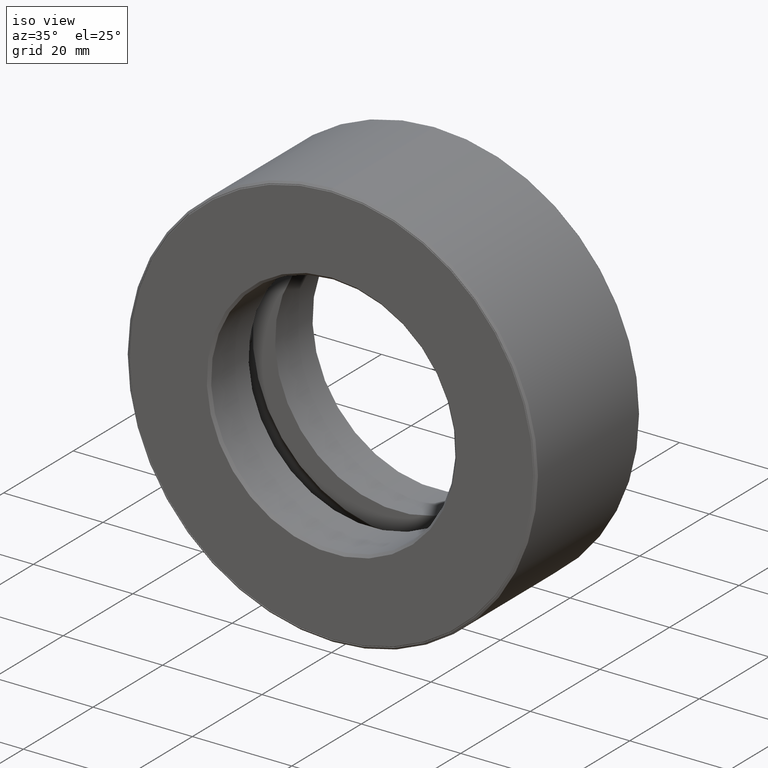
[diagram: clean part render]
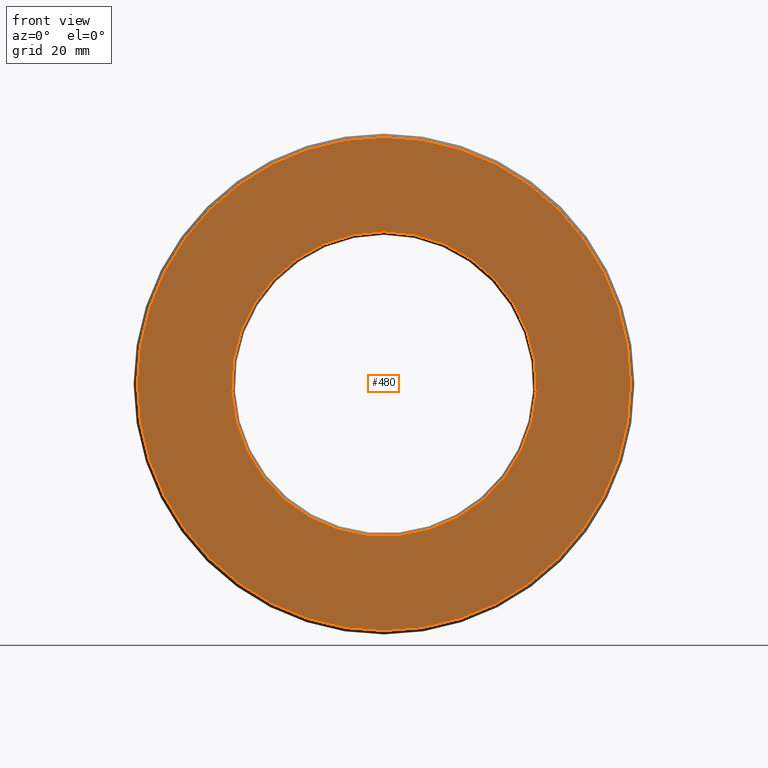
[diagram: tour spotlight — one face highlighted and labeled with its STEP entity id]
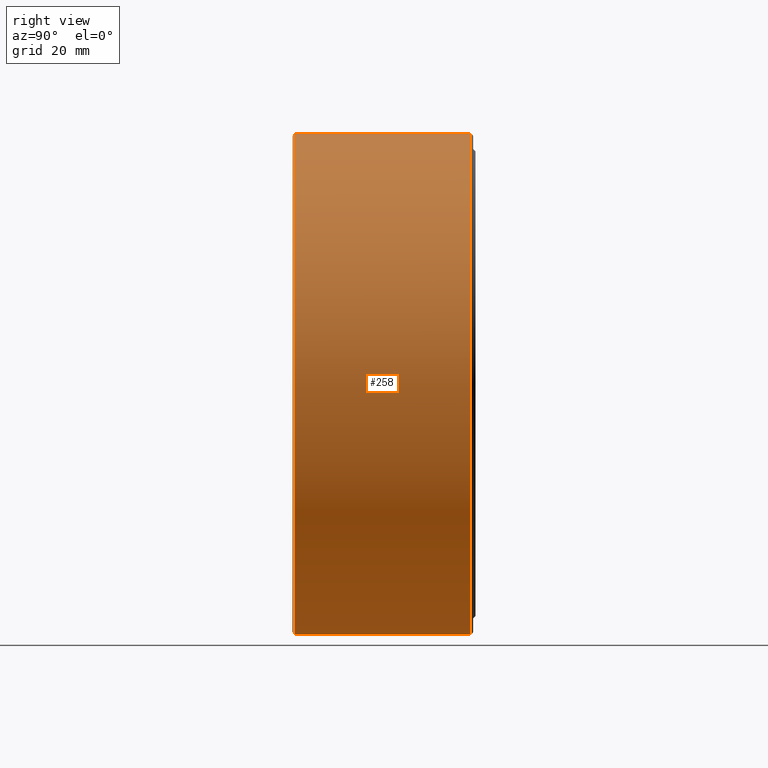
[diagram: tour spotlight — one face highlighted and labeled with its STEP entity id]
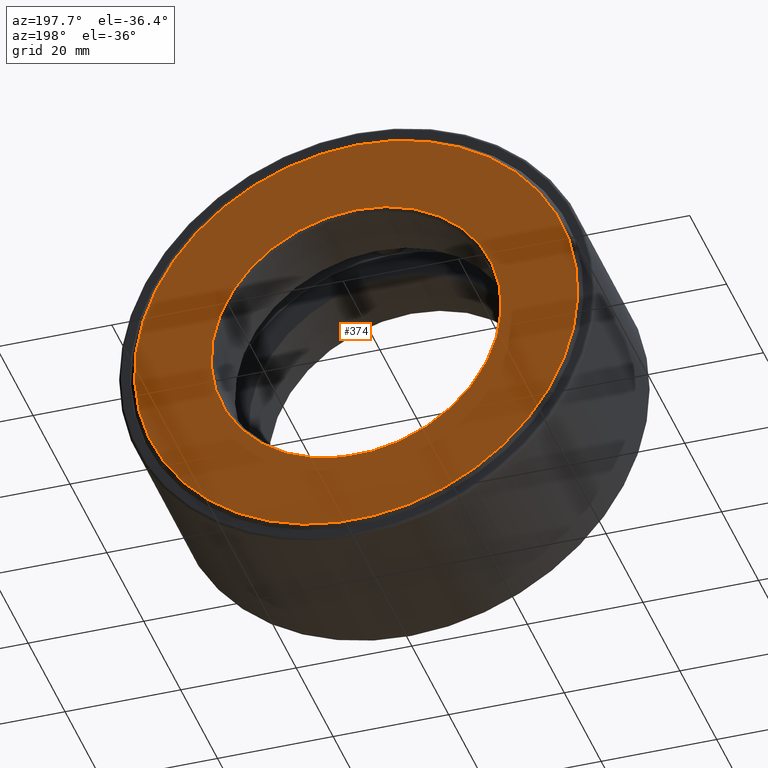
[diagram: tour spotlight — one face highlighted and labeled with its STEP entity id]
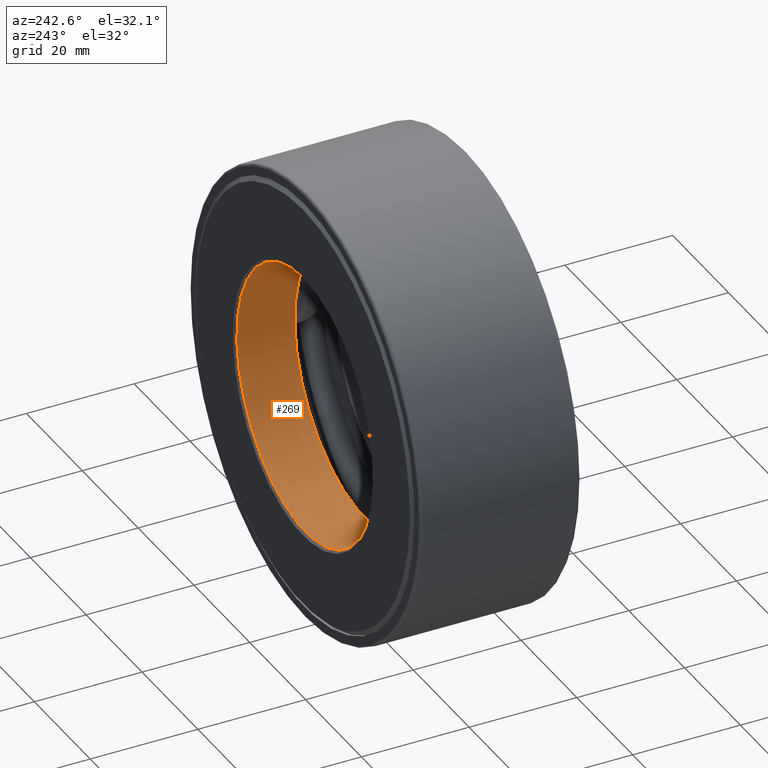
[diagram: tour spotlight — one face highlighted and labeled with its STEP entity id]
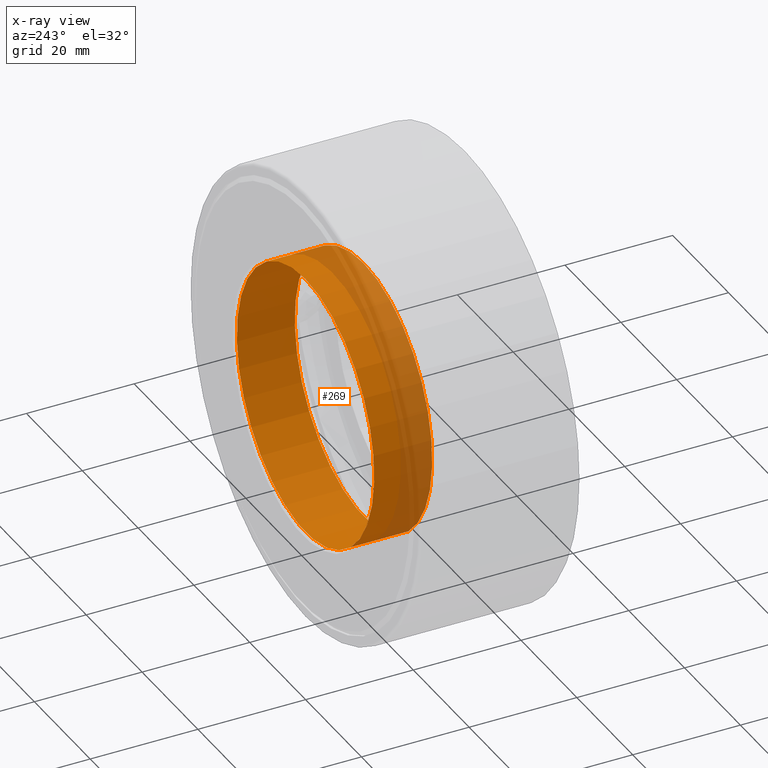
[diagram: x-ray of the same camera — body ghosted, this tour face saturated]
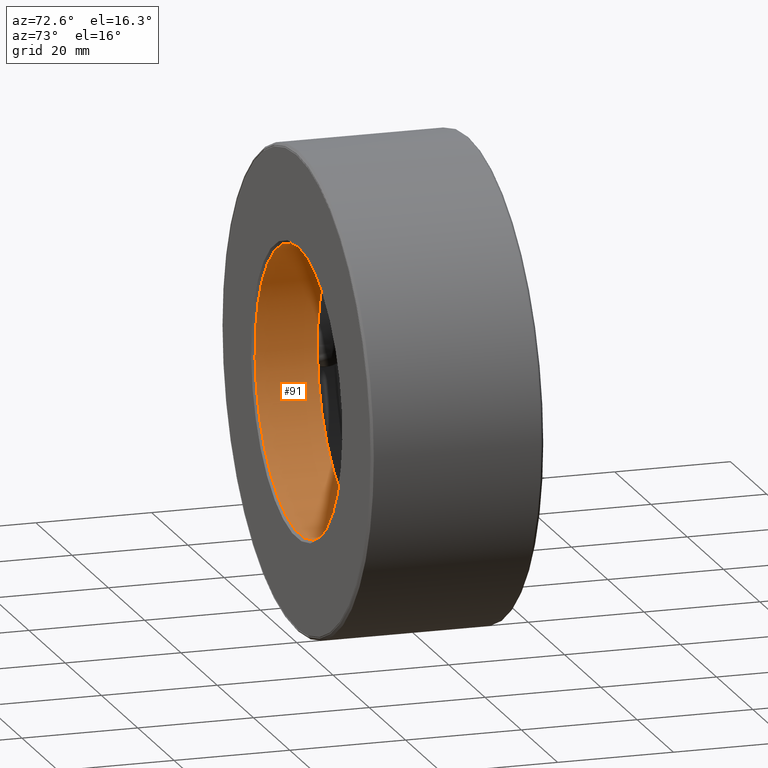
[diagram: tour spotlight — one face highlighted and labeled with its STEP entity id]
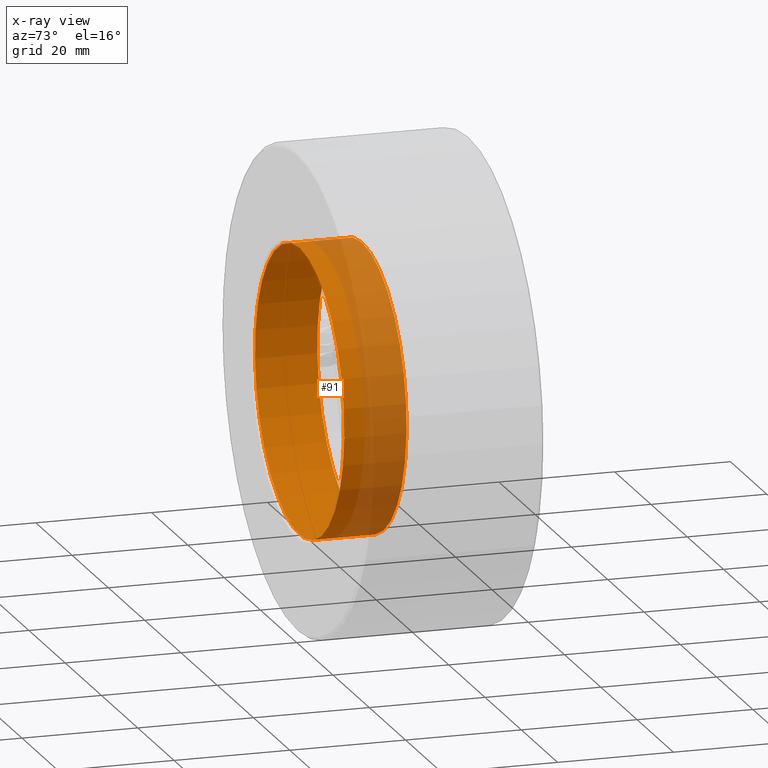
[diagram: x-ray of the same camera — body ghosted, this tour face saturated]
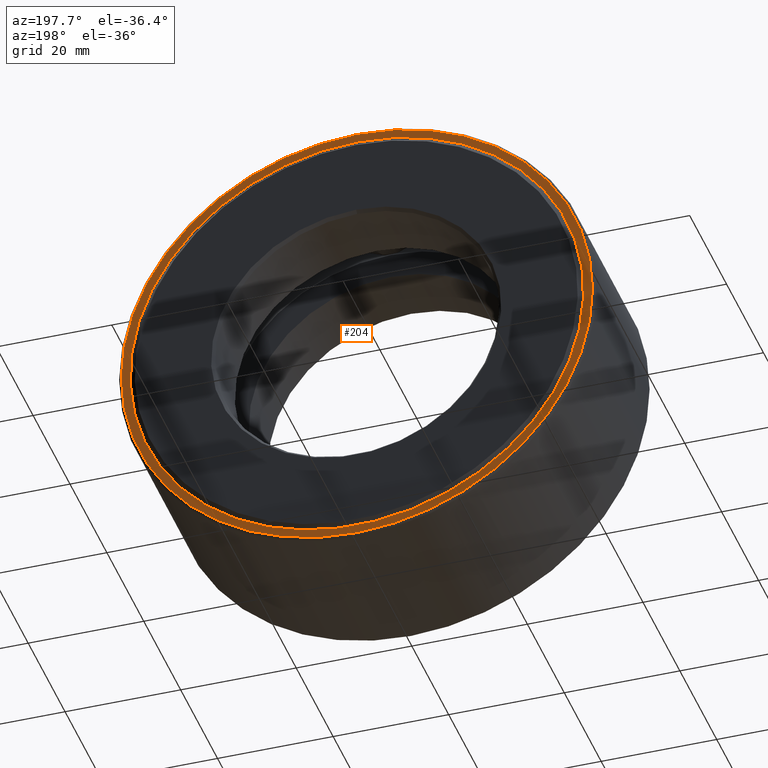
[diagram: tour spotlight — one face highlighted and labeled with its STEP entity id]
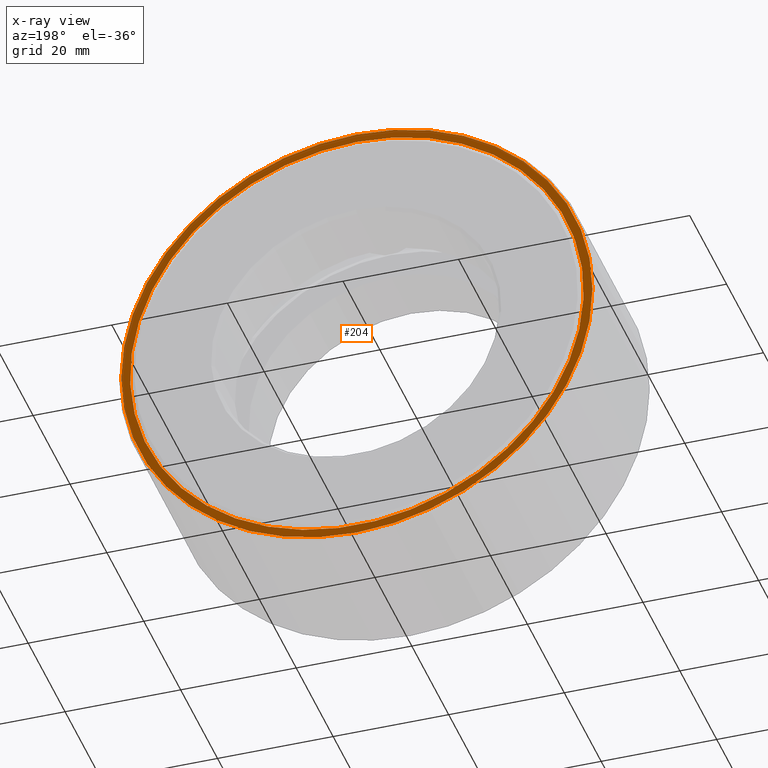
[diagram: x-ray of the same camera — body ghosted, this tour face saturated]
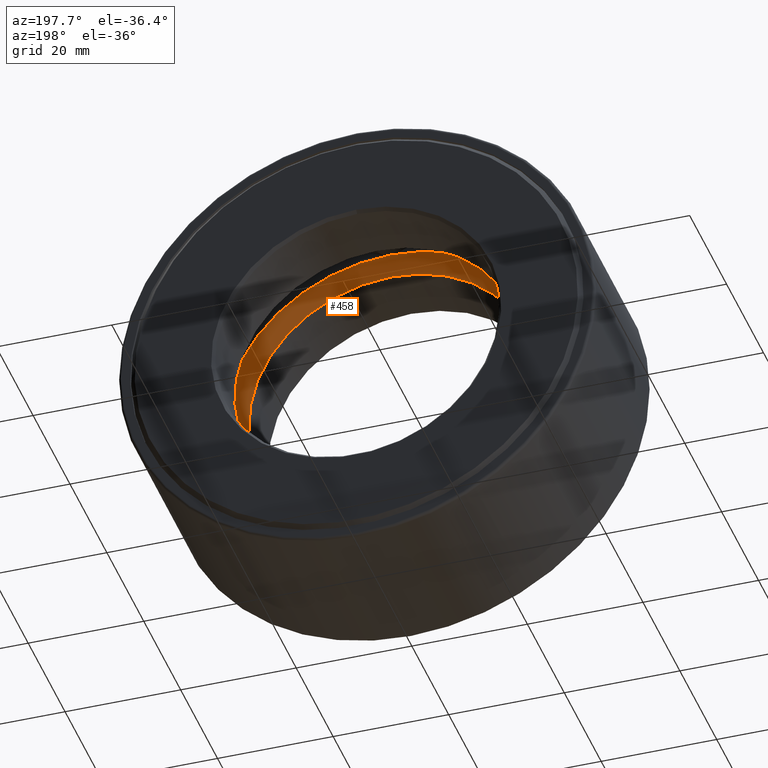
[diagram: tour spotlight — one face highlighted and labeled with its STEP entity id]
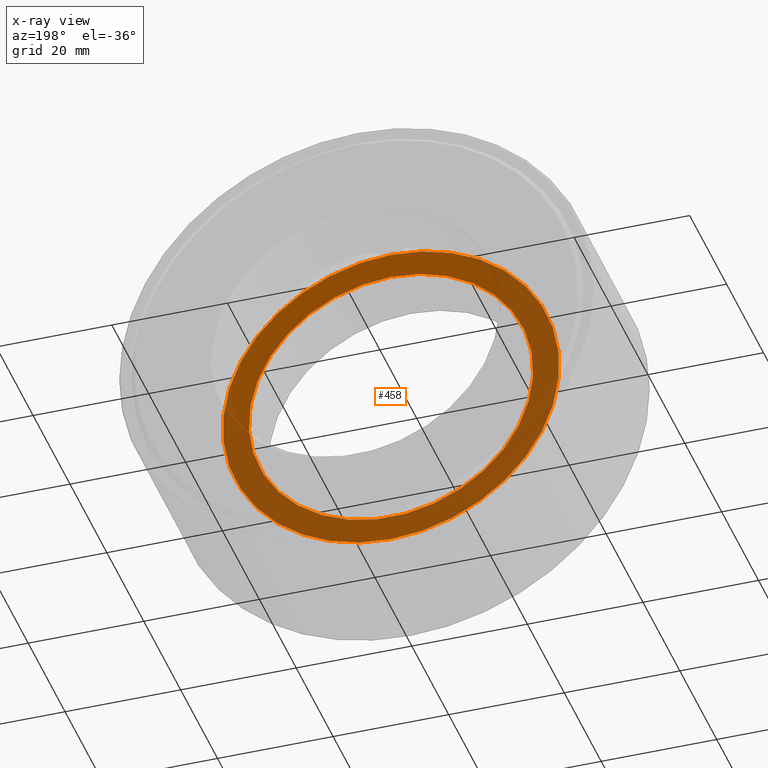
[diagram: x-ray of the same camera — body ghosted, this tour face saturated]
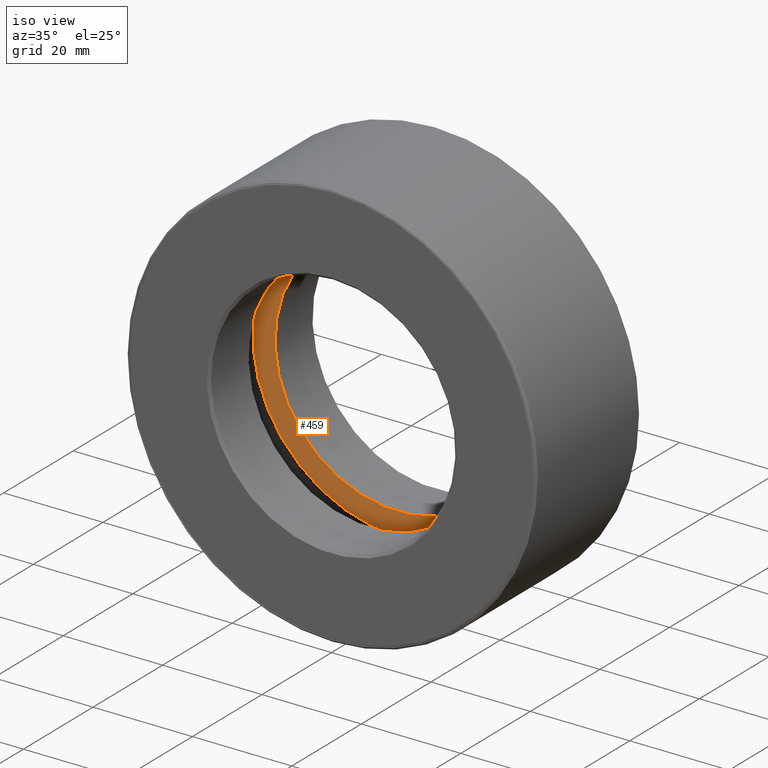
[diagram: tour spotlight — one face highlighted and labeled with its STEP entity id]
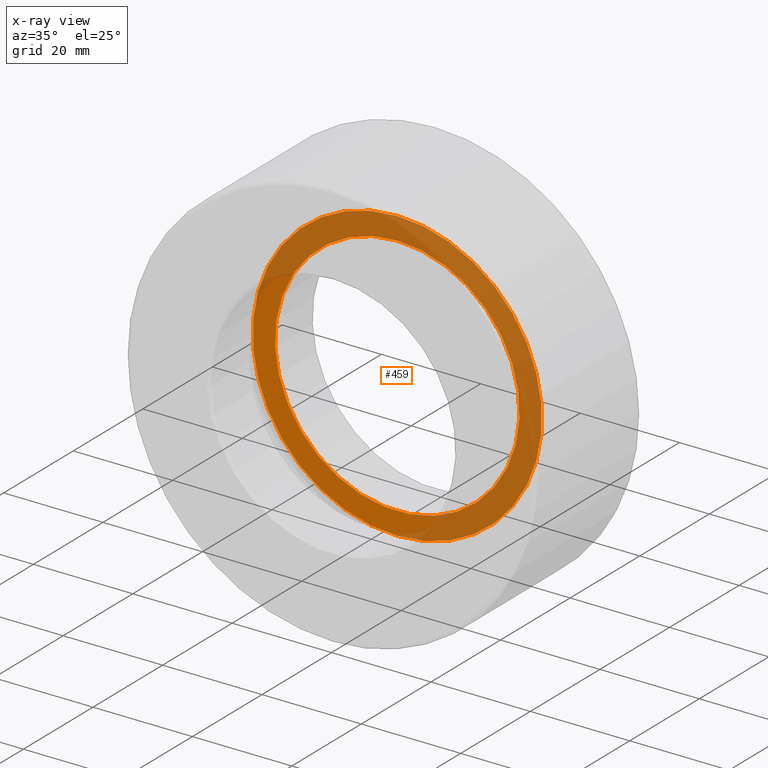
[diagram: x-ray of the same camera — body ghosted, this tour face saturated]
A machine part: a face-by-face anatomy tour. The part has 28 B-rep faces; the first image is the clean iso view, then the 8 largest visible faces are spotlighted one at a time (largest first), each with its STEP entity span.

Face 1 — front view, entity #480. In plain terms, the highlighted planar face has unit normal (-0, 1, 0).
Definition (entity closure, byte-faithful):
#7 = ORIENTED_EDGE ( 'NONE', *, *, #507, .T. ) ;
#9 = AXIS2_PLACEMENT_3D ( 'NONE', #125, #42, #81 ) ;
#27 = EDGE_LOOP ( 'NONE', ( #7 ) ) ;
#31 = EDGE_CURVE ( 'NONE', #479, #479, #551, .T. ) ;
#42 = DIRECTION ( 'NONE',  ( -0.0000000000000000000, 1.000000000000000000, 0.0000000000000000000 ) ) ;
#67 = CARTESIAN_POINT ( 'NONE',  ( 0.0000000000000000000, -8.643737792453333200E-017, 0.0000000000000000000 ) ) ;
#76 = CARTESIAN_POINT ( 'NONE',  ( 0.0000000000000000000, 6.829619984160658000E-017, 0.0000000000000000000 ) ) ;
#81 = DIRECTION ( 'NONE',  ( 0.0000000000000000000, 0.0000000000000000000, 1.000000000000000000 ) ) ;
#102 = EDGE_LOOP ( 'NONE', ( #533 ) ) ;
#125 = CARTESIAN_POINT ( 'NONE',  ( -1.977206003405029600E-032, -9.070589041463374400E-018, 0.0000000000000000000 ) ) ;
#136 = CARTESIAN_POINT ( 'NONE',  ( 0.0000000000000000000, 6.829619984160658000E-017, 0.9887500000000002400 ) ) ;
#195 = CARTESIAN_POINT ( 'NONE',  ( 0.0000000000000000000, -8.643737792453333200E-017, 1.599999999999999600 ) ) ;
#253 = DIRECTION ( 'NONE',  ( -0.0000000000000000000, 1.000000000000000000, -0.0000000000000000000 ) ) ;
#288 = FACE_OUTER_BOUND ( 'NONE', #102, .T. ) ;
#307 = DIRECTION ( 'NONE',  ( 0.0000000000000000000, 0.0000000000000000000, 1.000000000000000000 ) ) ;
#378 = AXIS2_PLACEMENT_3D ( 'NONE', #67, #499, #450 ) ;
#444 = VERTEX_POINT ( 'NONE', #136 ) ;
#449 = CIRCLE ( 'NONE', #563, 0.9887500000000002400 ) ;
#450 = DIRECTION ( 'NONE',  ( 0.0000000000000000000, 0.0000000000000000000, 1.000000000000000000 ) ) ;
#479 = VERTEX_POINT ( 'NONE', #195 ) ;
#480 = ADVANCED_FACE ( 'NONE', ( #288, #586 ), #546, .F. ) ;
#499 = DIRECTION ( 'NONE',  ( -0.0000000000000000000, 1.000000000000000000, -0.0000000000000000000 ) ) ;
#507 = EDGE_CURVE ( 'NONE', #444, #444, #449, .T. ) ;
#533 = ORIENTED_EDGE ( 'NONE', *, *, #31, .F. ) ;
#546 = PLANE ( 'NONE',  #9 ) ;
#551 = CIRCLE ( 'NONE', #378, 1.599999999999999600 ) ;
#563 = AXIS2_PLACEMENT_3D ( 'NONE', #76, #253, #307 ) ;
#586 = FACE_BOUND ( 'NONE', #27, .T. ) ;

Face 2 — right view, entity #258. In plain terms, the highlighted cylindrical surface (bore or boss wall) has radius 41.275 mm, axis along (-0, 1, -0).
Definition (entity closure, byte-faithful):
#6 = EDGE_CURVE ( 'NONE', #340, #340, #236, .T. ) ;
#53 = EDGE_LOOP ( 'NONE', ( #411 ) ) ;
#61 = EDGE_CURVE ( 'NONE', #467, #467, #130, .T. ) ;
#92 = DIRECTION ( 'NONE',  ( -0.0000000000000000000, 1.000000000000000000, -0.0000000000000000000 ) ) ;
#96 = CARTESIAN_POINT ( 'NONE',  ( 0.0000000000000000000, 0.0000000000000000000, 0.0000000000000000000 ) ) ;
#130 = CIRCLE ( 'NONE', #587, 1.624999999999999800 ) ;
#131 = CARTESIAN_POINT ( 'NONE',  ( 0.0000000000000000000, 1.152499999999999900, 1.625000000000000000 ) ) ;
#132 = DIRECTION ( 'NONE',  ( -0.0000000000000000000, 1.000000000000000000, -0.0000000000000000000 ) ) ;
#154 = AXIS2_PLACEMENT_3D ( 'NONE', #227, #92, #422 ) ;
#170 = DIRECTION ( 'NONE',  ( 0.0000000000000000000, 0.0000000000000000000, 1.000000000000000000 ) ) ;
#210 = CYLINDRICAL_SURFACE ( 'NONE', #595, 1.624999999999999800 ) ;
#227 = CARTESIAN_POINT ( 'NONE',  ( 0.0000000000000000000, 1.152499999999999900, 0.0000000000000000000 ) ) ;
#236 = CIRCLE ( 'NONE', #154, 1.625000000000000000 ) ;
#258 = ADVANCED_FACE ( 'NONE', ( #409, #394 ), #210, .T. ) ;
#263 = DIRECTION ( 'NONE',  ( -0.0000000000000000000, 1.000000000000000000, -0.0000000000000000000 ) ) ;
#318 = CARTESIAN_POINT ( 'NONE',  ( 0.0000000000000000000, 0.01499999999999997700, 0.0000000000000000000 ) ) ;
#331 = ORIENTED_EDGE ( 'NONE', *, *, #61, .T. ) ;
#340 = VERTEX_POINT ( 'NONE', #131 ) ;
#394 = FACE_OUTER_BOUND ( 'NONE', #566, .T. ) ;
#409 = FACE_OUTER_BOUND ( 'NONE', #53, .T. ) ;
#411 = ORIENTED_EDGE ( 'NONE', *, *, #6, .F. ) ;
#419 = CARTESIAN_POINT ( 'NONE',  ( 0.0000000000000000000, 0.01499999999999997700, 1.624999999999999800 ) ) ;
#422 = DIRECTION ( 'NONE',  ( 0.0000000000000000000, 0.0000000000000000000, 1.000000000000000000 ) ) ;
#464 = DIRECTION ( 'NONE',  ( 0.0000000000000000000, 0.0000000000000000000, 1.000000000000000000 ) ) ;
#467 = VERTEX_POINT ( 'NONE', #419 ) ;
#566 = EDGE_LOOP ( 'NONE', ( #331 ) ) ;
#587 = AXIS2_PLACEMENT_3D ( 'NONE', #318, #263, #170 ) ;
#595 = AXIS2_PLACEMENT_3D ( 'NONE', #96, #132, #464 ) ;

Face 3 — auxiliary view, entity #374. In plain terms, the highlighted planar face has unit normal (-0, 1, 0).
Definition (entity closure, byte-faithful):
#25 = ORIENTED_EDGE ( 'NONE', *, *, #145, .F. ) ;
#44 = CARTESIAN_POINT ( 'NONE',  ( 0.0000000000000000000, 1.187500000000000000, 1.509999999999999800 ) ) ;
#48 = EDGE_LOOP ( 'NONE', ( #382 ) ) ;
#128 = FACE_BOUND ( 'NONE', #192, .T. ) ;
#145 = EDGE_CURVE ( 'NONE', #242, #242, #529, .T. ) ;
#166 = DIRECTION ( 'NONE',  ( -0.0000000000000000000, 1.000000000000000000, -0.0000000000000000000 ) ) ;
#176 = CARTESIAN_POINT ( 'NONE',  ( 0.0000000000000000000, 1.187500000000000000, 0.0000000000000000000 ) ) ;
#192 = EDGE_LOOP ( 'NONE', ( #25 ) ) ;
#242 = VERTEX_POINT ( 'NONE', #518 ) ;
#255 = CIRCLE ( 'NONE', #413, 1.509999999999999800 ) ;
#291 = CARTESIAN_POINT ( 'NONE',  ( 0.0000000000000000000, 1.187500000000000000, 0.0000000000000000000 ) ) ;
#312 = DIRECTION ( 'NONE',  ( 0.0000000000000000000, 0.0000000000000000000, 1.000000000000000000 ) ) ;
#352 = DIRECTION ( 'NONE',  ( -0.0000000000000000000, 1.000000000000000000, 0.0000000000000000000 ) ) ;
#357 = DIRECTION ( 'NONE',  ( 0.0000000000000000000, 0.0000000000000000000, 1.000000000000000000 ) ) ;
#366 = PLANE ( 'NONE',  #541 ) ;
#374 = ADVANCED_FACE ( 'NONE', ( #381, #128 ), #366, .T. ) ;
#381 = FACE_OUTER_BOUND ( 'NONE', #48, .T. ) ;
#382 = ORIENTED_EDGE ( 'NONE', *, *, #488, .T. ) ;
#398 = AXIS2_PLACEMENT_3D ( 'NONE', #456, #598, #559 ) ;
#413 = AXIS2_PLACEMENT_3D ( 'NONE', #176, #166, #357 ) ;
#456 = CARTESIAN_POINT ( 'NONE',  ( 0.0000000000000000000, 1.187500000000000000, 0.0000000000000000000 ) ) ;
#460 = VERTEX_POINT ( 'NONE', #44 ) ;
#488 = EDGE_CURVE ( 'NONE', #460, #460, #255, .T. ) ;
#518 = CARTESIAN_POINT ( 'NONE',  ( 0.0000000000000000000, 1.187500000000000000, 0.9887500000000003500 ) ) ;
#529 = CIRCLE ( 'NONE', #398, 0.9887500000000003500 ) ;
#541 = AXIS2_PLACEMENT_3D ( 'NONE', #291, #352, #312 ) ;
#559 = DIRECTION ( 'NONE',  ( 0.0000000000000000000, 0.0000000000000000000, 1.000000000000000000 ) ) ;
#598 = DIRECTION ( 'NONE',  ( -0.0000000000000000000, 1.000000000000000000, -0.0000000000000000000 ) ) ;

Face 4 — auxiliary view, entity #269. An x-ray twin of the same camera follows (body ghosted, this face saturated) — the face is partly hidden behind the body. In plain terms, the highlighted cylindrical surface (bore or boss wall) has radius 24.6063 mm, axis along (-0, 1, -0).
Definition (entity closure, byte-faithful):
#4 = DIRECTION ( 'NONE',  ( 0.0000000000000000000, 0.0000000000000000000, 1.000000000000000000 ) ) ;
#22 = AXIS2_PLACEMENT_3D ( 'NONE', #247, #209, #438 ) ;
#26 = CIRCLE ( 'NONE', #22, 0.9687500000000001100 ) ;
#55 = DIRECTION ( 'NONE',  ( -0.0000000000000000000, 1.000000000000000000, -0.0000000000000000000 ) ) ;
#144 = CYLINDRICAL_SURFACE ( 'NONE', #453, 0.9687500000000001100 ) ;
#146 = DIRECTION ( 'NONE',  ( -0.0000000000000000000, 1.000000000000000000, -0.0000000000000000000 ) ) ;
#161 = VERTEX_POINT ( 'NONE', #603 ) ;
#200 = CIRCLE ( 'NONE', #359, 0.9687500000000001100 ) ;
#209 = DIRECTION ( 'NONE',  ( -0.0000000000000000000, 1.000000000000000000, -0.0000000000000000000 ) ) ;
#247 = CARTESIAN_POINT ( 'NONE',  ( 0.0000000000000000000, 0.7437500000000001300, 0.0000000000000000000 ) ) ;
#267 = FACE_OUTER_BOUND ( 'NONE', #492, .T. ) ;
#269 = ADVANCED_FACE ( 'NONE', ( #267, #282 ), #144, .F. ) ;
#280 = CARTESIAN_POINT ( 'NONE',  ( 0.0000000000000000000, 0.0000000000000000000, 0.0000000000000000000 ) ) ;
#282 = FACE_OUTER_BOUND ( 'NONE', #322, .T. ) ;
#283 = ORIENTED_EDGE ( 'NONE', *, *, #309, .F. ) ;
#309 = EDGE_CURVE ( 'NONE', #161, #161, #26, .T. ) ;
#320 = CARTESIAN_POINT ( 'NONE',  ( 0.0000000000000000000, 1.167499999999999500, 0.9687500000000001100 ) ) ;
#322 = EDGE_LOOP ( 'NONE', ( #283 ) ) ;
#359 = AXIS2_PLACEMENT_3D ( 'NONE', #362, #146, #573 ) ;
#362 = CARTESIAN_POINT ( 'NONE',  ( 0.0000000000000000000, 1.167499999999999500, 0.0000000000000000000 ) ) ;
#438 = DIRECTION ( 'NONE',  ( 0.0000000000000000000, 0.0000000000000000000, 1.000000000000000000 ) ) ;
#453 = AXIS2_PLACEMENT_3D ( 'NONE', #280, #55, #4 ) ;
#492 = EDGE_LOOP ( 'NONE', ( #585 ) ) ;
#532 = EDGE_CURVE ( 'NONE', #572, #572, #200, .T. ) ;
#572 = VERTEX_POINT ( 'NONE', #320 ) ;
#573 = DIRECTION ( 'NONE',  ( 0.0000000000000000000, 0.0000000000000000000, 1.000000000000000000 ) ) ;
#585 = ORIENTED_EDGE ( 'NONE', *, *, #532, .T. ) ;
#603 = CARTESIAN_POINT ( 'NONE',  ( 0.0000000000000000000, 0.7437500000000001300, 0.9687500000000001100 ) ) ;

Face 5 — auxiliary view, entity #91. An x-ray twin of the same camera follows (body ghosted, this face saturated) — the face is partly hidden behind the body. In plain terms, the highlighted cylindrical surface (bore or boss wall) has radius 24.6063 mm, axis along (-0, 1, -0).
Definition (entity closure, byte-faithful):
#5 = DIRECTION ( 'NONE',  ( 0.0000000000000000000, 0.0000000000000000000, 1.000000000000000000 ) ) ;
#39 = FACE_OUTER_BOUND ( 'NONE', #548, .T. ) ;
#40 = ORIENTED_EDGE ( 'NONE', *, *, #231, .T. ) ;
#49 = CIRCLE ( 'NONE', #314, 0.9687500000000000000 ) ;
#50 = DIRECTION ( 'NONE',  ( -0.0000000000000000000, 1.000000000000000000, -0.0000000000000000000 ) ) ;
#91 = ADVANCED_FACE ( 'NONE', ( #39, #540 ), #337, .F. ) ;
#173 = EDGE_LOOP ( 'NONE', ( #40 ) ) ;
#217 = AXIS2_PLACEMENT_3D ( 'NONE', #470, #333, #406 ) ;
#231 = EDGE_CURVE ( 'NONE', #360, #360, #584, .T. ) ;
#266 = ORIENTED_EDGE ( 'NONE', *, *, #578, .F. ) ;
#277 = AXIS2_PLACEMENT_3D ( 'NONE', #560, #50, #425 ) ;
#286 = DIRECTION ( 'NONE',  ( -0.0000000000000000000, 1.000000000000000000, -0.0000000000000000000 ) ) ;
#314 = AXIS2_PLACEMENT_3D ( 'NONE', #375, #286, #5 ) ;
#333 = DIRECTION ( 'NONE',  ( -0.0000000000000000000, 1.000000000000000000, -0.0000000000000000000 ) ) ;
#337 = CYLINDRICAL_SURFACE ( 'NONE', #217, 0.9687500000000001100 ) ;
#360 = VERTEX_POINT ( 'NONE', #478 ) ;
#371 = CARTESIAN_POINT ( 'NONE',  ( 0.0000000000000000000, 0.02000000000000046900, 0.9687500000000000000 ) ) ;
#375 = CARTESIAN_POINT ( 'NONE',  ( 0.0000000000000000000, 0.02000000000000046900, 0.0000000000000000000 ) ) ;
#406 = DIRECTION ( 'NONE',  ( 0.0000000000000000000, 0.0000000000000000000, 1.000000000000000000 ) ) ;
#407 = VERTEX_POINT ( 'NONE', #371 ) ;
#425 = DIRECTION ( 'NONE',  ( 0.0000000000000000000, 0.0000000000000000000, 1.000000000000000000 ) ) ;
#470 = CARTESIAN_POINT ( 'NONE',  ( 0.0000000000000000000, 0.0000000000000000000, 0.0000000000000000000 ) ) ;
#478 = CARTESIAN_POINT ( 'NONE',  ( 0.0000000000000000000, 0.4437499999999998700, 0.9687500000000001100 ) ) ;
#540 = FACE_OUTER_BOUND ( 'NONE', #173, .T. ) ;
#548 = EDGE_LOOP ( 'NONE', ( #266 ) ) ;
#560 = CARTESIAN_POINT ( 'NONE',  ( 0.0000000000000000000, 0.4437499999999998700, 0.0000000000000000000 ) ) ;
#578 = EDGE_CURVE ( 'NONE', #407, #407, #49, .T. ) ;
#584 = CIRCLE ( 'NONE', #277, 0.9687500000000001100 ) ;

Face 6 — auxiliary view, entity #204. An x-ray twin of the same camera follows (body ghosted, this face saturated) — the face is partly hidden behind the body. In plain terms, the highlighted planar face has unit normal (0, -1, 0).
Definition (entity closure, byte-faithful):
#32 = DIRECTION ( 'NONE',  ( 0.0000000000000000000, 0.0000000000000000000, 1.000000000000000000 ) ) ;
#52 = EDGE_LOOP ( 'NONE', ( #542 ) ) ;
#70 = DIRECTION ( 'NONE',  ( 0.0000000000000000000, 0.0000000000000000000, 1.000000000000000000 ) ) ;
#71 = CARTESIAN_POINT ( 'NONE',  ( 0.0000000000000000000, 1.172499999999999900, 0.0000000000000000000 ) ) ;
#118 = DIRECTION ( 'NONE',  ( -0.0000000000000000000, 1.000000000000000000, -0.0000000000000000000 ) ) ;
#135 = EDGE_CURVE ( 'NONE', #525, #525, #298, .T. ) ;
#147 = CARTESIAN_POINT ( 'NONE',  ( 0.0000000000000000000, 1.172499999999999900, 1.545000000000000200 ) ) ;
#169 = DIRECTION ( 'NONE',  ( 0.0000000000000000000, -1.000000000000000000, 0.0000000000000000000 ) ) ;
#177 = AXIS2_PLACEMENT_3D ( 'NONE', #243, #169, #326 ) ;
#204 = ADVANCED_FACE ( 'NONE', ( #396, #249 ), #571, .F. ) ;
#240 = AXIS2_PLACEMENT_3D ( 'NONE', #71, #118, #32 ) ;
#243 = CARTESIAN_POINT ( 'NONE',  ( 0.0000000000000000000, 1.172499999999999900, 0.0000000000000000000 ) ) ;
#249 = FACE_OUTER_BOUND ( 'NONE', #400, .T. ) ;
#250 = CARTESIAN_POINT ( 'NONE',  ( 0.0000000000000000000, 1.172499999999999900, 0.0000000000000000000 ) ) ;
#298 = CIRCLE ( 'NONE', #240, 1.605000000000000000 ) ;
#326 = DIRECTION ( 'NONE',  ( 0.0000000000000000000, -0.0000000000000000000, -1.000000000000000000 ) ) ;
#386 = EDGE_CURVE ( 'NONE', #487, #487, #601, .T. ) ;
#396 = FACE_BOUND ( 'NONE', #52, .T. ) ;
#400 = EDGE_LOOP ( 'NONE', ( #428 ) ) ;
#428 = ORIENTED_EDGE ( 'NONE', *, *, #135, .T. ) ;
#432 = CARTESIAN_POINT ( 'NONE',  ( 0.0000000000000000000, 1.172499999999999900, 1.605000000000000000 ) ) ;
#487 = VERTEX_POINT ( 'NONE', #147 ) ;
#510 = AXIS2_PLACEMENT_3D ( 'NONE', #250, #564, #70 ) ;
#525 = VERTEX_POINT ( 'NONE', #432 ) ;
#542 = ORIENTED_EDGE ( 'NONE', *, *, #386, .F. ) ;
#564 = DIRECTION ( 'NONE',  ( -0.0000000000000000000, 1.000000000000000000, -0.0000000000000000000 ) ) ;
#571 = PLANE ( 'NONE',  #177 ) ;
#601 = CIRCLE ( 'NONE', #510, 1.545000000000000200 ) ;

Face 7 — auxiliary view, entity #458. An x-ray twin of the same camera follows (body ghosted, this face saturated) — the face is partly hidden behind the body. In plain terms, the highlighted planar face has unit normal (0, -1, 0).
Definition (entity closure, byte-faithful):
#50 = DIRECTION ( 'NONE',  ( -0.0000000000000000000, 1.000000000000000000, -0.0000000000000000000 ) ) ;
#80 = CARTESIAN_POINT ( 'NONE',  ( 0.0000000000000000000, 0.4437499999999998700, 0.0000000000000000000 ) ) ;
#89 = VERTEX_POINT ( 'NONE', #133 ) ;
#115 = DIRECTION ( 'NONE',  ( 0.0000000000000000000, 0.0000000000000000000, 1.000000000000000000 ) ) ;
#129 = DIRECTION ( 'NONE',  ( 0.0000000000000000000, -1.000000000000000000, 0.0000000000000000000 ) ) ;
#133 = CARTESIAN_POINT ( 'NONE',  ( 0.0000000000000000000, 0.4437499999999998700, 1.146000000000000400 ) ) ;
#152 = FACE_OUTER_BOUND ( 'NONE', #402, .T. ) ;
#171 = PLANE ( 'NONE',  #476 ) ;
#184 = ORIENTED_EDGE ( 'NONE', *, *, #231, .F. ) ;
#231 = EDGE_CURVE ( 'NONE', #360, #360, #584, .T. ) ;
#277 = AXIS2_PLACEMENT_3D ( 'NONE', #560, #50, #425 ) ;
#296 = EDGE_LOOP ( 'NONE', ( #184 ) ) ;
#313 = CARTESIAN_POINT ( 'NONE',  ( 0.0000000000000000000, 0.4437499999999998700, 0.0000000000000000000 ) ) ;
#360 = VERTEX_POINT ( 'NONE', #478 ) ;
#363 = DIRECTION ( 'NONE',  ( 0.0000000000000000000, -0.0000000000000000000, -1.000000000000000000 ) ) ;
#368 = FACE_BOUND ( 'NONE', #296, .T. ) ;
#402 = EDGE_LOOP ( 'NONE', ( #491 ) ) ;
#425 = DIRECTION ( 'NONE',  ( 0.0000000000000000000, 0.0000000000000000000, 1.000000000000000000 ) ) ;
#451 = EDGE_CURVE ( 'NONE', #89, #89, #534, .T. ) ;
#458 = ADVANCED_FACE ( 'NONE', ( #368, #152 ), #171, .F. ) ;
#476 = AXIS2_PLACEMENT_3D ( 'NONE', #313, #129, #363 ) ;
#478 = CARTESIAN_POINT ( 'NONE',  ( 0.0000000000000000000, 0.4437499999999998700, 0.9687500000000001100 ) ) ;
#491 = ORIENTED_EDGE ( 'NONE', *, *, #451, .T. ) ;
#493 = AXIS2_PLACEMENT_3D ( 'NONE', #80, #591, #115 ) ;
#534 = CIRCLE ( 'NONE', #493, 1.146000000000000400 ) ;
#560 = CARTESIAN_POINT ( 'NONE',  ( 0.0000000000000000000, 0.4437499999999998700, 0.0000000000000000000 ) ) ;
#584 = CIRCLE ( 'NONE', #277, 0.9687500000000001100 ) ;
#591 = DIRECTION ( 'NONE',  ( -0.0000000000000000000, 1.000000000000000000, -0.0000000000000000000 ) ) ;

Face 8 — iso view, entity #459. An x-ray twin of the same camera follows (body ghosted, this face saturated) — the face is partly hidden behind the body. In plain terms, the highlighted planar face has unit normal (0, -1, 0).
Definition (entity closure, byte-faithful):
#22 = AXIS2_PLACEMENT_3D ( 'NONE', #247, #209, #438 ) ;
#26 = CIRCLE ( 'NONE', #22, 0.9687500000000001100 ) ;
#28 = DIRECTION ( 'NONE',  ( 0.0000000000000000000, -1.000000000000000000, 0.0000000000000000000 ) ) ;
#33 = DIRECTION ( 'NONE',  ( 0.0000000000000000000, 0.0000000000000000000, 1.000000000000000000 ) ) ;
#104 = CARTESIAN_POINT ( 'NONE',  ( 0.0000000000000000000, 0.7437500000000001300, 1.146000000000000400 ) ) ;
#122 = PLANE ( 'NONE',  #446 ) ;
#123 = AXIS2_PLACEMENT_3D ( 'NONE', #175, #262, #33 ) ;
#161 = VERTEX_POINT ( 'NONE', #603 ) ;
#175 = CARTESIAN_POINT ( 'NONE',  ( 0.0000000000000000000, 0.7437500000000001300, 0.0000000000000000000 ) ) ;
#185 = CIRCLE ( 'NONE', #123, 1.146000000000000400 ) ;
#193 = ORIENTED_EDGE ( 'NONE', *, *, #500, .F. ) ;
#199 = EDGE_LOOP ( 'NONE', ( #193 ) ) ;
#209 = DIRECTION ( 'NONE',  ( -0.0000000000000000000, 1.000000000000000000, -0.0000000000000000000 ) ) ;
#247 = CARTESIAN_POINT ( 'NONE',  ( 0.0000000000000000000, 0.7437500000000001300, 0.0000000000000000000 ) ) ;
#262 = DIRECTION ( 'NONE',  ( -0.0000000000000000000, 1.000000000000000000, -0.0000000000000000000 ) ) ;
#309 = EDGE_CURVE ( 'NONE', #161, #161, #26, .T. ) ;
#339 = FACE_OUTER_BOUND ( 'NONE', #199, .T. ) ;
#410 = DIRECTION ( 'NONE',  ( 0.0000000000000000000, -0.0000000000000000000, -1.000000000000000000 ) ) ;
#438 = DIRECTION ( 'NONE',  ( 0.0000000000000000000, 0.0000000000000000000, 1.000000000000000000 ) ) ;
#446 = AXIS2_PLACEMENT_3D ( 'NONE', #457, #28, #410 ) ;
#457 = CARTESIAN_POINT ( 'NONE',  ( 0.0000000000000000000, 0.7437500000000001300, 0.0000000000000000000 ) ) ;
#459 = ADVANCED_FACE ( 'NONE', ( #482, #339 ), #122, .T. ) ;
#482 = FACE_BOUND ( 'NONE', #576, .T. ) ;
#500 = EDGE_CURVE ( 'NONE', #543, #543, #185, .T. ) ;
#543 = VERTEX_POINT ( 'NONE', #104 ) ;
#557 = ORIENTED_EDGE ( 'NONE', *, *, #309, .T. ) ;
#576 = EDGE_LOOP ( 'NONE', ( #557 ) ) ;
#603 = CARTESIAN_POINT ( 'NONE',  ( 0.0000000000000000000, 0.7437500000000001300, 0.9687500000000001100 ) ) ;